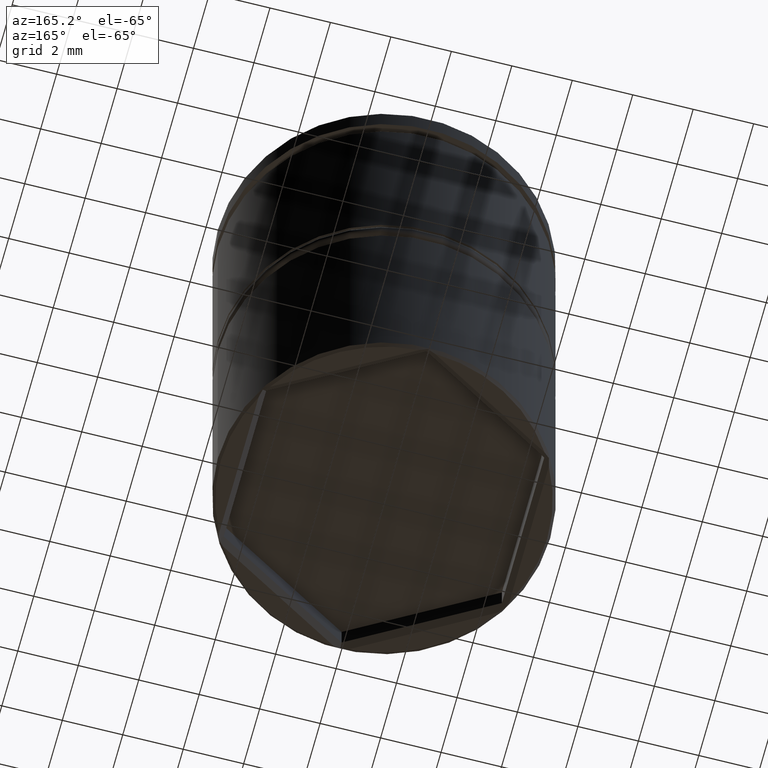
[diagram: clean part render]
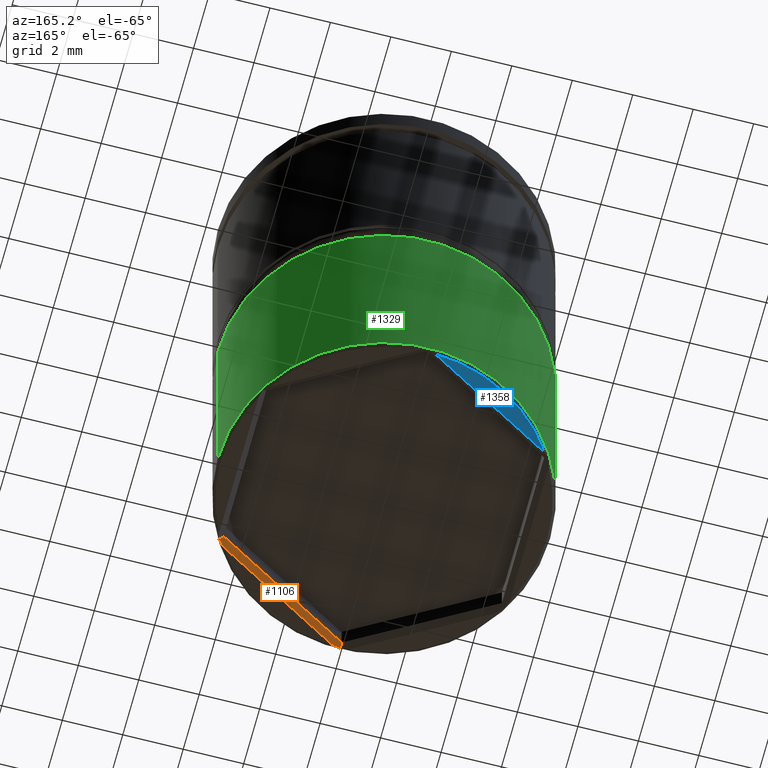
[diagram: same view with three faces highlighted in distinct colors, each labeled with its STEP entity id]
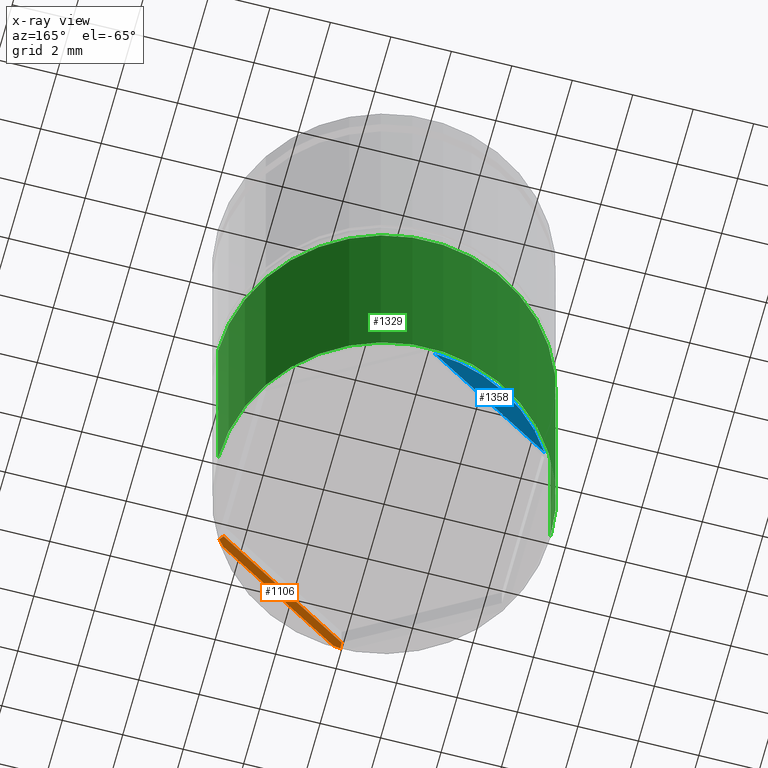
[diagram: x-ray of the same camera — body ghosted, the three highlighted faces saturated]
A machine part, auxiliary view with three faces highlighted in distinct colors.
The next image is the same camera in x-ray (body ghosted, the three faces saturated) — at least one of them is partly hidden behind the body in this view.
Their STEP definitions:

[orange] entity #1106 — the highlighted planar face has unit normal (-0.3536, 0.6124, -0.7071).
#31 = VERTEX_POINT ( 'NONE', #771 ) ;
#76 = EDGE_CURVE ( 'NONE', #31, #644, #963, .T. ) ;
#92 = ORIENTED_EDGE ( 'NONE', *, *, #76, .F. ) ;
#112 = LINE ( 'NONE', #311, #972 ) ;
#124 = VERTEX_POINT ( 'NONE', #1021 ) ;
#145 = ORIENTED_EDGE ( 'NONE', *, *, #208, .F. ) ;
#176 = CARTESIAN_POINT ( 'NONE',  ( 4.600000000000003197, -2.655811238272280050, -17.30000000000000426 ) ) ;
#196 = DIRECTION ( 'NONE',  ( 0.6546536707079771977, -0.3779644730092269755, -0.6546536707079770867 ) ) ;
#208 = EDGE_CURVE ( 'NONE', #124, #31, #485, .T. ) ;
#242 = EDGE_LOOP ( 'NONE', ( #92, #145, #1270, #468, #650, #719 ) ) ;
#251 = LINE ( 'NONE', #1119, #1196 ) ;
#255 = B_SPLINE_CURVE_WITH_KNOTS ( 'NONE', 3,
 ( #1339, #1238, #272, #598 ),
 .UNSPECIFIED., .F., .F.,
 ( 4, 4 ),
 ( 1.891262555392043906E-19, 0.0002755891808806599174 ),
 .UNSPECIFIED. ) ;
#272 = CARTESIAN_POINT ( 'NONE',  ( 0.1717818557229302545, -5.419049164421316789, -17.47892516860715872 ) ) ;
#283 = DIRECTION ( 'NONE',  ( 0.8660254037844385966, 0.4999999999999999445, 0.000000000000000000 ) ) ;
#311 = CARTESIAN_POINT ( 'NONE',  ( -9.334475960612078863E-16, -5.311622476544560989, -17.30000000000000426 ) ) ;
#365 = CARTESIAN_POINT ( 'NONE',  ( 4.733836474405098471, -2.733081762797452630, -17.43383647440510131 ) ) ;
#392 = DIRECTION ( 'NONE',  ( 1.792096372221770271E-15, 0.7559289460184548393, 0.6546536707079767536 ) ) ;
#468 = ORIENTED_EDGE ( 'NONE', *, *, #1375, .T. ) ;
#482 = FACE_OUTER_BOUND ( 'NONE', #242, .T. ) ;
#485 = LINE ( 'NONE', #1134, #940 ) ;
#500 = CARTESIAN_POINT ( 'NONE',  ( 4.670951587135925287, -2.795966650066627590, -17.45685394065973739 ) ) ;
#535 = CARTESIAN_POINT ( 'NONE',  ( -8.646952822150503169E-16, -5.311622476544560989, -17.30000000000000426 ) ) ;
#573 = VERTEX_POINT ( 'NONE', #535 ) ;
#598 = CARTESIAN_POINT ( 'NONE',  ( 0.2575714714371426517, -5.393853625850607791, -17.50000000000000000 ) ) ;
#604 = VECTOR ( 'NONE', #196, 1000.000000000000114 ) ;
#641 = LINE ( 'NONE', #1168, #604 ) ;
#644 = VERTEX_POINT ( 'NONE', #952 ) ;
#650 = ORIENTED_EDGE ( 'NONE', *, *, #1170, .F. ) ;
#659 = EDGE_CURVE ( 'NONE', #1209, #644, #641, .T. ) ;
#719 = ORIENTED_EDGE ( 'NONE', *, *, #659, .T. ) ;
#771 = CARTESIAN_POINT ( 'NONE',  ( 4.542428528562859391, -2.919990250480007266, -17.50000000000000000 ) ) ;
#801 = PLANE ( 'NONE',  #881 ) ;
#860 = VERTEX_POINT ( 'NONE', #873 ) ;
#862 = DIRECTION ( 'NONE',  ( -0.8660254037844385966, -0.4999999999999999445, 0.000000000000000000 ) ) ;
#873 = CARTESIAN_POINT ( 'NONE',  ( -1.204079547557657958E-15, -5.466163525594906147, -17.43383647440510131 ) ) ;
#881 = AXIS2_PLACEMENT_3D ( 'NONE', #176, #935, #283 ) ;
#935 = DIRECTION ( 'NONE',  ( -0.3535533905932737864, 0.6123724356957945814, -0.7071067811865474617 ) ) ;
#940 = VECTOR ( 'NONE', #1338, 1000.000000000000114 ) ;
#952 = CARTESIAN_POINT ( 'NONE',  ( 4.733836474405098471, -2.733081762797452630, -17.43383647440510131 ) ) ;
#963 = B_SPLINE_CURVE_WITH_KNOTS ( 'NONE', 3,
 ( #1115, #1140, #500, #365 ),
 .UNSPECIFIED., .F., .F.,
 ( 4, 4 ),
 ( 0.000000000000000000, 0.0002755891808806588332 ),
 .UNSPECIFIED. ) ;
#972 = VECTOR ( 'NONE', #862, 1000.000000000000114 ) ;
#1021 = CARTESIAN_POINT ( 'NONE',  ( 0.2575714714371426517, -5.393853625850607791, -17.50000000000000000 ) ) ;
#1106 = ADVANCED_FACE ( 'NONE', ( #482 ), #801, .T. ) ;
#1115 = CARTESIAN_POINT ( 'NONE',  ( 4.542428528562859391, -2.919990250480007266, -17.50000000000000000 ) ) ;
#1119 = CARTESIAN_POINT ( 'NONE',  ( -8.646952822150503169E-16, -5.311622476544560989, -17.30000000000000426 ) ) ;
#1134 = CARTESIAN_POINT ( 'NONE',  ( 4.700000000000002842, -2.829016319029166393, -17.50000000000000000 ) ) ;
#1140 = CARTESIAN_POINT ( 'NONE',  ( 4.607143312884230291, -2.858292033175949598, -17.47892516860715872 ) ) ;
#1151 = EDGE_CURVE ( 'NONE', #860, #124, #255, .T. ) ;
#1167 = CARTESIAN_POINT ( 'NONE',  ( 4.600000000000003197, -2.655811238272280050, -17.30000000000000426 ) ) ;
#1168 = CARTESIAN_POINT ( 'NONE',  ( 3.285714285714289584, -1.897008027337344638, -15.98571428571429109 ) ) ;
#1170 = EDGE_CURVE ( 'NONE', #1209, #573, #112, .T. ) ;
#1196 = VECTOR ( 'NONE', #392, 1000.000000000000114 ) ;
#1209 = VERTEX_POINT ( 'NONE', #1167 ) ;
#1238 = CARTESIAN_POINT ( 'NONE',  ( 0.08590235352381191125, -5.443146059340267406, -17.45685394065973739 ) ) ;
#1270 = ORIENTED_EDGE ( 'NONE', *, *, #1151, .F. ) ;
#1338 = DIRECTION ( 'NONE',  ( 0.8660254037844385966, 0.4999999999999999445, 0.000000000000000000 ) ) ;
#1339 = CARTESIAN_POINT ( 'NONE',  ( -1.204079547557657958E-15, -5.466163525594906147, -17.43383647440510131 ) ) ;
#1375 = EDGE_CURVE ( 'NONE', #860, #573, #251, .T. ) ;

[blue] entity #1358 — the highlighted planar face has unit normal (0, 0, -1).
#47 = CIRCLE ( 'NONE', #1252, 5.400000000000003908 ) ;
#69 = FACE_OUTER_BOUND ( 'NONE', #773, .T. ) ;
#102 = CARTESIAN_POINT ( 'NONE',  ( -0.2575714714371378777, 5.393853625850606903, -17.50000000000000000 ) ) ;
#116 = CARTESIAN_POINT ( 'NONE',  ( 0.000000000000000000, 0.000000000000000000, -17.50000000000000000 ) ) ;
#239 = VERTEX_POINT ( 'NONE', #102 ) ;
#269 = PLANE ( 'NONE',  #1086 ) ;
#320 = DIRECTION ( 'NONE',  ( -1.000000000000000000, 0.000000000000000000, 0.000000000000000000 ) ) ;
#440 = LINE ( 'NONE', #871, #1103 ) ;
#503 = DIRECTION ( 'NONE',  ( -1.000000000000000000, 0.000000000000000000, -0.000000000000000000 ) ) ;
#545 = EDGE_CURVE ( 'NONE', #239, #1268, #440, .T. ) ;
#688 = DIRECTION ( 'NONE',  ( 0.000000000000000000, 0.000000000000000000, -1.000000000000000000 ) ) ;
#748 = EDGE_CURVE ( 'NONE', #1268, #239, #47, .T. ) ;
#773 = EDGE_LOOP ( 'NONE', ( #960, #1297 ) ) ;
#791 = CARTESIAN_POINT ( 'NONE',  ( 0.000000000000000000, 5.500000000000000000, -17.50000000000000000 ) ) ;
#871 = CARTESIAN_POINT ( 'NONE',  ( -4.700000000000002842, 2.829016319029166393, -17.50000000000000000 ) ) ;
#960 = ORIENTED_EDGE ( 'NONE', *, *, #748, .T. ) ;
#967 = DIRECTION ( 'NONE',  ( -0.8660254037844387076, -0.4999999999999998335, 0.000000000000000000 ) ) ;
#1086 = AXIS2_PLACEMENT_3D ( 'NONE', #791, #688, #503 ) ;
#1103 = VECTOR ( 'NONE', #967, 1000.000000000000000 ) ;
#1252 = AXIS2_PLACEMENT_3D ( 'NONE', #116, #1373, #320 ) ;
#1268 = VERTEX_POINT ( 'NONE', #1365 ) ;
#1297 = ORIENTED_EDGE ( 'NONE', *, *, #545, .T. ) ;
#1358 = ADVANCED_FACE ( 'NONE', ( #69 ), #269, .T. ) ;
#1365 = CARTESIAN_POINT ( 'NONE',  ( -4.542428528562861167, 2.919990250480004601, -17.50000000000000000 ) ) ;
#1373 = DIRECTION ( 'NONE',  ( 0.000000000000000000, 0.000000000000000000, -1.000000000000000000 ) ) ;

[green] entity #1329 — the highlighted cylindrical surface (partial cylindrical patch) has radius 5.5 mm, axis along (-0, -0, 1).
#17 = FACE_OUTER_BOUND ( 'NONE', #1177, .T. ) ;
#51 = CARTESIAN_POINT ( 'NONE',  ( -5.500000000000000000, 6.735557395310442023E-16, -9.299999999999998934 ) ) ;
#158 = DIRECTION ( 'NONE',  ( 1.000000000000000000, 0.000000000000000000, 0.000000000000000000 ) ) ;
#178 = EDGE_CURVE ( 'NONE', #441, #891, #1187, .T. ) ;
#276 = CARTESIAN_POINT ( 'NONE',  ( 5.500000000000000000, 0.000000000000000000, 0.000000000000000000 ) ) ;
#323 = DIRECTION ( 'NONE',  ( -0.000000000000000000, -0.000000000000000000, 1.000000000000000000 ) ) ;
#415 = CARTESIAN_POINT ( 'NONE',  ( -5.500000000000000000, 6.735557395310442023E-16, -17.40000000000000568 ) ) ;
#417 = DIRECTION ( 'NONE',  ( -0.000000000000000000, -0.000000000000000000, 1.000000000000000000 ) ) ;
#418 = ORIENTED_EDGE ( 'NONE', *, *, #443, .T. ) ;
#426 = CARTESIAN_POINT ( 'NONE',  ( 5.500000000000000000, 0.000000000000000000, -9.299999999999998934 ) ) ;
#441 = VERTEX_POINT ( 'NONE', #51 ) ;
#443 = EDGE_CURVE ( 'NONE', #567, #653, #488, .T. ) ;
#469 = DIRECTION ( 'NONE',  ( -0.000000000000000000, -0.000000000000000000, 1.000000000000000000 ) ) ;
#488 = CIRCLE ( 'NONE', #1188, 5.500000000000000000 ) ;
#529 = CARTESIAN_POINT ( 'NONE',  ( -5.500000000000000000, 6.735557395310442023E-16, 0.000000000000000000 ) ) ;
#539 = ORIENTED_EDGE ( 'NONE', *, *, #1160, .F. ) ;
#542 = AXIS2_PLACEMENT_3D ( 'NONE', #876, #1300, #770 ) ;
#546 = CARTESIAN_POINT ( 'NONE',  ( 5.500000000000000000, 0.000000000000000000, -17.40000000000000568 ) ) ;
#567 = VERTEX_POINT ( 'NONE', #546 ) ;
#603 = DIRECTION ( 'NONE',  ( 0.000000000000000000, 0.000000000000000000, -1.000000000000000000 ) ) ;
#652 = LINE ( 'NONE', #529, #654 ) ;
#653 = VERTEX_POINT ( 'NONE', #415 ) ;
#654 = VECTOR ( 'NONE', #417, 1000.000000000000000 ) ;
#770 = DIRECTION ( 'NONE',  ( 1.000000000000000000, 0.000000000000000000, 0.000000000000000000 ) ) ;
#775 = ORIENTED_EDGE ( 'NONE', *, *, #178, .T. ) ;
#786 = VECTOR ( 'NONE', #323, 1000.000000000000000 ) ;
#789 = EDGE_CURVE ( 'NONE', #653, #441, #652, .T. ) ;
#816 = LINE ( 'NONE', #276, #786 ) ;
#825 = AXIS2_PLACEMENT_3D ( 'NONE', #1241, #603, #158 ) ;
#876 = CARTESIAN_POINT ( 'NONE',  ( 0.000000000000000000, 0.000000000000000000, 0.000000000000000000 ) ) ;
#891 = VERTEX_POINT ( 'NONE', #426 ) ;
#893 = CARTESIAN_POINT ( 'NONE',  ( 0.000000000000000000, 0.000000000000000000, -17.40000000000000568 ) ) ;
#1160 = EDGE_CURVE ( 'NONE', #567, #891, #816, .T. ) ;
#1177 = EDGE_LOOP ( 'NONE', ( #418, #1357, #775, #539 ) ) ;
#1187 = CIRCLE ( 'NONE', #825, 5.500000000000000000 ) ;
#1188 = AXIS2_PLACEMENT_3D ( 'NONE', #893, #469, #1316 ) ;
#1191 = CYLINDRICAL_SURFACE ( 'NONE', #542, 5.500000000000000000 ) ;
#1241 = CARTESIAN_POINT ( 'NONE',  ( 0.000000000000000000, 0.000000000000000000, -9.299999999999998934 ) ) ;
#1300 = DIRECTION ( 'NONE',  ( -0.000000000000000000, -0.000000000000000000, 1.000000000000000000 ) ) ;
#1316 = DIRECTION ( 'NONE',  ( -1.000000000000000000, 0.000000000000000000, 0.000000000000000000 ) ) ;
#1329 = ADVANCED_FACE ( 'NONE', ( #17 ), #1191, .T. ) ;
#1357 = ORIENTED_EDGE ( 'NONE', *, *, #789, .T. ) ;